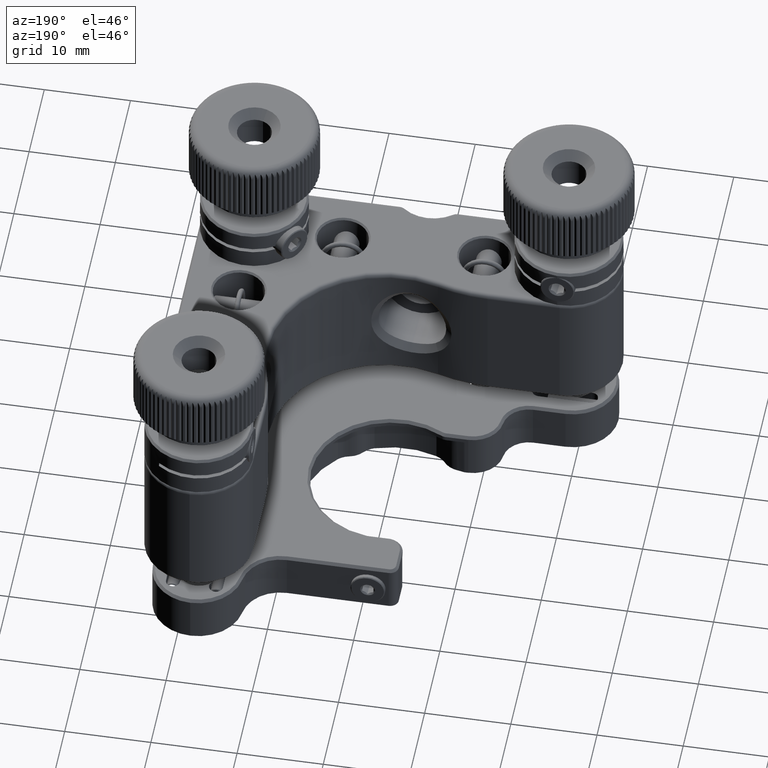
[diagram: clean part render]
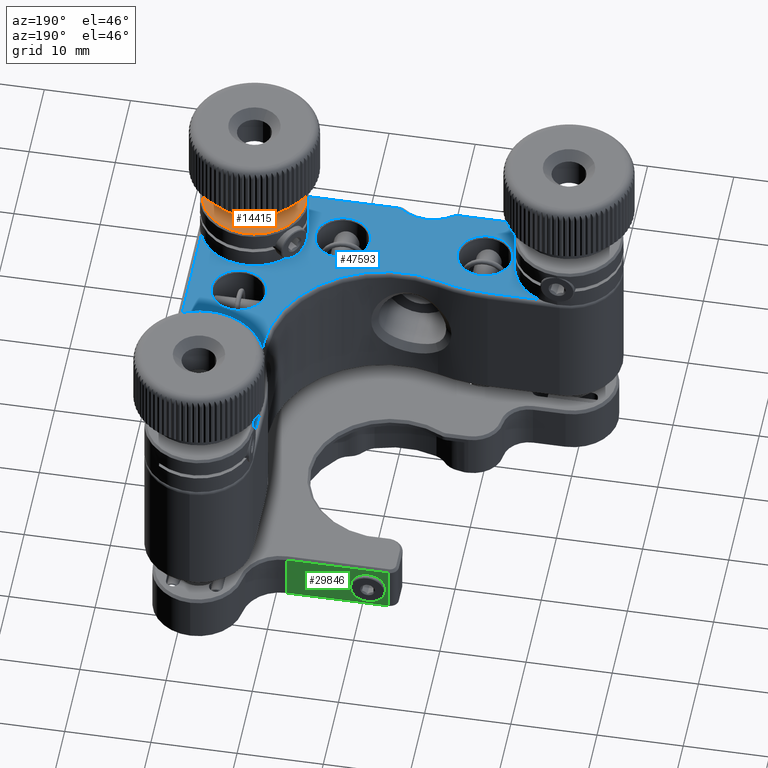
[diagram: same view with three faces highlighted in distinct colors, each labeled with its STEP entity id]
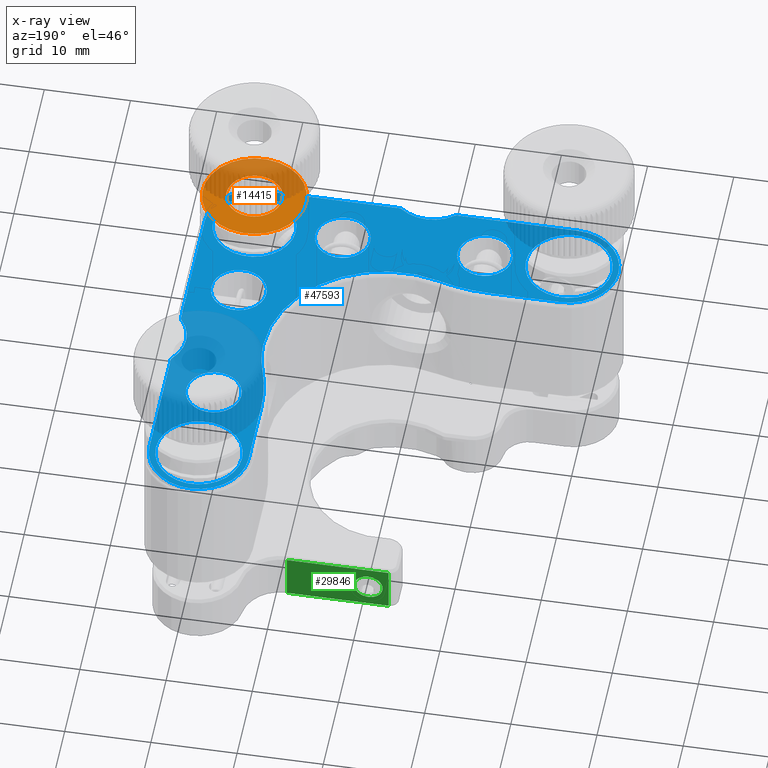
[diagram: x-ray of the same camera — body ghosted, the three highlighted faces saturated]
A machine part, auxiliary view with three faces highlighted in distinct colors.
The next image is the same camera in x-ray (body ghosted, the three faces saturated) — at least one of them is partly hidden behind the body in this view.
Their STEP definitions:

[orange] entity #14415 — the highlighted planar face has unit normal (-0, 0, -1).
#302 = AXIS2_PLACEMENT_3D ( 'NONE', #42571, #33354, #8518 ) ;
#671 = AXIS2_PLACEMENT_3D ( 'NONE', #47712, #34298, #20896 ) ;
#2427 = CARTESIAN_POINT ( 'NONE',  ( 18.25000000000000711, -18.24999999999999645, 12.50000000000000000 ) ) ;
#4098 = AXIS2_PLACEMENT_3D ( 'NONE', #26321, #47590, #38650 ) ;
#4198 = ORIENTED_EDGE ( 'NONE', *, *, #44161, .T. ) ;
#7264 = EDGE_CURVE ( 'NONE', #33093, #47151, #23450, .T. ) ;
#7959 = FACE_BOUND ( 'NONE', #16939, .T. ) ;
#8003 = CARTESIAN_POINT ( 'NONE',  ( 22.92461896794812759, -22.01137441695181352, 12.50000000000000000 ) ) ;
#8518 = DIRECTION ( 'NONE',  ( -0.7791031613246869325, 0.6268957361586364740, 0.000000000000000000 ) ) ;
#9682 = AXIS2_PLACEMENT_3D ( 'NONE', #25811, #12713, #42861 ) ;
#12367 = ORIENTED_EDGE ( 'NONE', *, *, #7264, .T. ) ;
#12428 = FACE_OUTER_BOUND ( 'NONE', #28843, .T. ) ;
#12713 = DIRECTION ( 'NONE',  ( -1.774750517403714598E-32, 3.949628969160791059E-32, -1.000000000000000000 ) ) ;
#14415 = ADVANCED_FACE ( 'NONE', ( #12428, #7959 ), #33637, .F. ) ;
#16939 = EDGE_LOOP ( 'NONE', ( #12367, #4198 ) ) ;
#18109 = CARTESIAN_POINT ( 'NONE',  ( 20.78208527430523489, -20.28741114251555899, 12.50000000000000000 ) ) ;
#18535 = ORIENTED_EDGE ( 'NONE', *, *, #42754, .T. ) ;
#20262 = CIRCLE ( 'NONE', #671, 3.249999999999993783 ) ;
#20896 = DIRECTION ( 'NONE',  ( -0.7791031613246869325, 0.6268957361586364740, 0.000000000000000000 ) ) ;
#23450 = CIRCLE ( 'NONE', #302, 3.249999999999993783 ) ;
#25811 = CARTESIAN_POINT ( 'NONE',  ( 23.11939475827930224, -22.16809835099147108, 12.50000000000000000 ) ) ;
#26321 = CARTESIAN_POINT ( 'NONE',  ( 18.25000000000000711, -18.24999999999999645, 12.50000000000000000 ) ) ;
#28093 = DIRECTION ( 'NONE',  ( -0.7791031613246870435, 0.6268957361586364740, 0.000000000000000000 ) ) ;
#28843 = EDGE_LOOP ( 'NONE', ( #18535, #30981 ) ) ;
#30915 = EDGE_CURVE ( 'NONE', #43958, #33453, #42083, .T. ) ;
#30981 = ORIENTED_EDGE ( 'NONE', *, *, #30915, .T. ) ;
#31255 = CARTESIAN_POINT ( 'NONE',  ( 13.57538103205188484, -14.48862558304817938, 12.50000000000000000 ) ) ;
#33093 = VERTEX_POINT ( 'NONE', #18109 ) ;
#33354 = DIRECTION ( 'NONE',  ( -1.774750517403716240E-32, 3.949628969160792153E-32, -1.000000000000000000 ) ) ;
#33453 = VERTEX_POINT ( 'NONE', #31255 ) ;
#33637 = PLANE ( 'NONE',  #9682 ) ;
#34026 = AXIS2_PLACEMENT_3D ( 'NONE', #2427, #35115, #28093 ) ;
#34298 = DIRECTION ( 'NONE',  ( -1.774750517403716240E-32, 3.949628969160792153E-32, -1.000000000000000000 ) ) ;
#35115 = DIRECTION ( 'NONE',  ( 1.774750517403716240E-32, -3.949628969160792153E-32, 1.000000000000000000 ) ) ;
#38650 = DIRECTION ( 'NONE',  ( -0.7791031613246870435, 0.6268957361586364740, 0.000000000000000000 ) ) ;
#42083 = CIRCLE ( 'NONE', #34026, 5.999999999999999112 ) ;
#42571 = CARTESIAN_POINT ( 'NONE',  ( 18.25000000000000711, -18.24999999999999645, 12.50000000000000000 ) ) ;
#42754 = EDGE_CURVE ( 'NONE', #33453, #43958, #53193, .T. ) ;
#42861 = DIRECTION ( 'NONE',  ( -0.7791031613246870435, 0.6268957361586364740, 3.858719298847387965E-32 ) ) ;
#43958 = VERTEX_POINT ( 'NONE', #8003 ) ;
#44161 = EDGE_CURVE ( 'NONE', #47151, #33093, #20262, .T. ) ;
#47151 = VERTEX_POINT ( 'NONE', #48096 ) ;
#47590 = DIRECTION ( 'NONE',  ( 1.774750517403716240E-32, -3.949628969160792153E-32, 1.000000000000000000 ) ) ;
#47712 = CARTESIAN_POINT ( 'NONE',  ( 18.25000000000000711, -18.24999999999999645, 12.50000000000000000 ) ) ;
#48096 = CARTESIAN_POINT ( 'NONE',  ( 15.71791472569477754, -16.21258885748443035, 12.50000000000000000 ) ) ;
#53193 = CIRCLE ( 'NONE', #4098, 5.999999999999999112 ) ;

[blue] entity #47593 — the highlighted planar face has unit normal (-0, 0, 1).
#135 = DIRECTION ( 'NONE',  ( 0.000000000000000000, -0.000000000000000000, -1.000000000000000000 ) ) ;
#561 = LINE ( 'NONE', #52240, #40468 ) ;
#638 = VERTEX_POINT ( 'NONE', #52473 ) ;
#869 = DIRECTION ( 'NONE',  ( 1.000000000000000000, 0.000000000000000000, 0.000000000000000000 ) ) ;
#1233 = VERTEX_POINT ( 'NONE', #31636 ) ;
#1269 = CIRCLE ( 'NONE', #22662, 5.750000000000001776 ) ;
#1830 = CARTESIAN_POINT ( 'NONE',  ( 2.160838266476662994, -23.88785046728971651, 7.500000000000000000 ) ) ;
#1965 = AXIS2_PLACEMENT_3D ( 'NONE', #22678, #10122, #39726 ) ;
#2215 = FACE_BOUND ( 'NONE', #8515, .T. ) ;
#2265 = VERTEX_POINT ( 'NONE', #17474 ) ;
#2332 = CARTESIAN_POINT ( 'NONE',  ( 18.25000000000000711, -18.24999999999999645, 7.500000000000000000 ) ) ;
#2372 = CARTESIAN_POINT ( 'NONE',  ( -18.24999999999999645, -12.50000000000000178, 7.500000000000000000 ) ) ;
#3173 = ORIENTED_EDGE ( 'NONE', *, *, #30691, .T. ) ;
#3495 = AXIS2_PLACEMENT_3D ( 'NONE', #28370, #49088, #41512 ) ;
#3537 = CARTESIAN_POINT ( 'NONE',  ( 18.25000000000001066, 8.500000000000000000, 7.500000000000000000 ) ) ;
#3730 = CARTESIAN_POINT ( 'NONE',  ( 21.45000000000000995, -8.000000000000000000, 7.500000000000000000 ) ) ;
#4076 = DIRECTION ( 'NONE',  ( -0.000000000000000000, 0.000000000000000000, 1.000000000000000000 ) ) ;
#4082 = EDGE_CURVE ( 'NONE', #26129, #1233, #46228, .T. ) ;
#4489 = EDGE_CURVE ( 'NONE', #49781, #6556, #6945, .T. ) ;
#4604 = EDGE_CURVE ( 'NONE', #49095, #15634, #9283, .T. ) ;
#4714 = CIRCLE ( 'NONE', #50215, 5.749999999999998224 ) ;
#5026 = VECTOR ( 'NONE', #48789, 1000.000000000000000 ) ;
#5339 = AXIS2_PLACEMENT_3D ( 'NONE', #44367, #45203, #41013 ) ;
#5568 = EDGE_LOOP ( 'NONE', ( #29308, #12417 ) ) ;
#5754 = DIRECTION ( 'NONE',  ( -0.000000000000000000, 0.000000000000000000, 1.000000000000000000 ) ) ;
#5776 = ORIENTED_EDGE ( 'NONE', *, *, #26663, .T. ) ;
#5913 = ORIENTED_EDGE ( 'NONE', *, *, #29263, .T. ) ;
#5980 = CIRCLE ( 'NONE', #17555, 5.750000000000000000 ) ;
#6197 = EDGE_CURVE ( 'NONE', #21159, #638, #1269, .T. ) ;
#6216 = DIRECTION ( 'NONE',  ( 1.000000000000000000, 0.000000000000000000, 0.000000000000000000 ) ) ;
#6556 = VERTEX_POINT ( 'NONE', #43048 ) ;
#6623 = CARTESIAN_POINT ( 'NONE',  ( -18.24999999999999645, -18.24999999999999645, 7.500000000000000000 ) ) ;
#6725 = CARTESIAN_POINT ( 'NONE',  ( 23.05000000000000426, -18.24999999999999645, 7.500000000000000000 ) ) ;
#6741 = CARTESIAN_POINT ( 'NONE',  ( -8.499999999999992895, -18.25000000000001776, 7.500000000000000000 ) ) ;
#6945 = CIRCLE ( 'NONE', #21211, 14.00000000000000000 ) ;
#7148 = ORIENTED_EDGE ( 'NONE', *, *, #31683, .T. ) ;
#7400 = AXIS2_PLACEMENT_3D ( 'NONE', #14029, #9016, #35247 ) ;
#7487 = CIRCLE ( 'NONE', #19974, 4.799999999999998934 ) ;
#7850 = ORIENTED_EDGE ( 'NONE', *, *, #36719, .T. ) ;
#7882 = EDGE_CURVE ( 'NONE', #30757, #25965, #52026, .T. ) ;
#7942 = VERTEX_POINT ( 'NONE', #52570 ) ;
#7960 = ORIENTED_EDGE ( 'NONE', *, *, #43223, .T. ) ;
#8242 = CIRCLE ( 'NONE', #13630, 4.999999999999997335 ) ;
#8515 = EDGE_LOOP ( 'NONE', ( #47464, #37489 ) ) ;
#9016 = DIRECTION ( 'NONE',  ( 0.000000000000000000, -0.000000000000000000, -1.000000000000000000 ) ) ;
#9131 = VERTEX_POINT ( 'NONE', #43553 ) ;
#9283 = LINE ( 'NONE', #43076, #29246 ) ;
#9506 = CIRCLE ( 'NONE', #52345, 4.999999999999997335 ) ;
#9998 = DIRECTION ( 'NONE',  ( 1.000000000000000000, 0.000000000000000000, 0.000000000000000000 ) ) ;
#10122 = DIRECTION ( 'NONE',  ( -0.000000000000000000, 0.000000000000000000, 1.000000000000000000 ) ) ;
#10330 = VERTEX_POINT ( 'NONE', #3730 ) ;
#10425 = DIRECTION ( 'NONE',  ( -0.000000000000000000, 0.000000000000000000, 1.000000000000000000 ) ) ;
#10592 = CARTESIAN_POINT ( 'NONE',  ( 18.25000000000000000, -23.99999999999999645, 7.500000000000000000 ) ) ;
#11469 = CARTESIAN_POINT ( 'NONE',  ( -8.499999999999992895, -18.25000000000001776, 7.500000000000000000 ) ) ;
#11473 = DIRECTION ( 'NONE',  ( 1.000000000000000000, 0.000000000000000000, 0.000000000000000000 ) ) ;
#12417 = ORIENTED_EDGE ( 'NONE', *, *, #23592, .T. ) ;
#12460 = CARTESIAN_POINT ( 'NONE',  ( 23.50000000000000000, -2.476388603226838292, 7.500000000000000000 ) ) ;
#12745 = CIRCLE ( 'NONE', #19867, 5.750000000000001776 ) ;
#13259 = AXIS2_PLACEMENT_3D ( 'NONE', #33964, #34240, #22201 ) ;
#13294 = DIRECTION ( 'NONE',  ( 1.000000000000000000, 0.000000000000000000, 0.000000000000000000 ) ) ;
#13630 = AXIS2_PLACEMENT_3D ( 'NONE', #36168, #32528, #28050 ) ;
#13929 = ORIENTED_EDGE ( 'NONE', *, *, #4489, .T. ) ;
#14029 = CARTESIAN_POINT ( 'NONE',  ( 18.25000000000001066, 8.500000000000000000, 7.500000000000000000 ) ) ;
#14168 = CARTESIAN_POINT ( 'NONE',  ( -4.276388603226822127, -23.99999999999999645, 7.500000000000000000 ) ) ;
#14387 = CARTESIAN_POINT ( 'NONE',  ( 23.88785046728972006, -2.160838266476666547, 7.500000000000000000 ) ) ;
#14587 = DIRECTION ( 'NONE',  ( -0.000000000000000000, 0.000000000000000000, 1.000000000000000000 ) ) ;
#14615 = ORIENTED_EDGE ( 'NONE', *, *, #43948, .T. ) ;
#14769 = FACE_BOUND ( 'NONE', #53486, .T. ) ;
#14786 = DIRECTION ( 'NONE',  ( 0.000000000000000000, 0.000000000000000000, 1.000000000000000000 ) ) ;
#14891 = CARTESIAN_POINT ( 'NONE',  ( 24.00000000000000000, 4.276388603226818574, 7.500000000000000000 ) ) ;
#15249 = CARTESIAN_POINT ( 'NONE',  ( 23.99999999999999645, 18.25000000000000355, 7.500000000000000000 ) ) ;
#15330 = FACE_BOUND ( 'NONE', #27174, .T. ) ;
#15373 = LINE ( 'NONE', #19005, #42768 ) ;
#15549 = DIRECTION ( 'NONE',  ( 1.000000000000000000, 0.000000000000000000, 0.000000000000000000 ) ) ;
#15634 = VERTEX_POINT ( 'NONE', #2372 ) ;
#15805 = DIRECTION ( 'NONE',  ( 0.000000000000000000, -0.000000000000000000, -1.000000000000000000 ) ) ;
#15927 = EDGE_CURVE ( 'NONE', #34416, #54352, #52593, .T. ) ;
#15956 = DIRECTION ( 'NONE',  ( 0.000000000000000000, -0.000000000000000000, -1.000000000000000000 ) ) ;
#16258 = VERTEX_POINT ( 'NONE', #45311 ) ;
#16584 = DIRECTION ( 'NONE',  ( 1.000000000000000000, 0.000000000000000000, 0.000000000000000000 ) ) ;
#16637 = CIRCLE ( 'NONE', #45207, 19.50000000000000355 ) ;
#16653 = ORIENTED_EDGE ( 'NONE', *, *, #15927, .T. ) ;
#16783 = CARTESIAN_POINT ( 'NONE',  ( 32.00000000000000000, 9.912113800799506436, 7.500000000000000000 ) ) ;
#17077 = AXIS2_PLACEMENT_3D ( 'NONE', #30086, #47149, #17512 ) ;
#17249 = ORIENTED_EDGE ( 'NONE', *, *, #46585, .T. ) ;
#17435 = EDGE_LOOP ( 'NONE', ( #55030, #14615 ) ) ;
#17474 = CARTESIAN_POINT ( 'NONE',  ( -5.299999999999991829, -18.25000000000001776, 7.500000000000000000 ) ) ;
#17512 = DIRECTION ( 'NONE',  ( 1.000000000000000000, 0.000000000000000000, 0.000000000000000000 ) ) ;
#17555 = AXIS2_PLACEMENT_3D ( 'NONE', #35758, #44691, #18997 ) ;
#17759 = CIRCLE ( 'NONE', #44533, 4.850000000000003197 ) ;
#18391 = AXIS2_PLACEMENT_3D ( 'NONE', #20757, #24933, #25224 ) ;
#18613 = ORIENTED_EDGE ( 'NONE', *, *, #4082, .T. ) ;
#18686 = CIRCLE ( 'NONE', #25813, 3.199999999999987743 ) ;
#18695 = LINE ( 'NONE', #10592, #39386 ) ;
#18862 = DIRECTION ( 'NONE',  ( 1.000000000000000000, 6.217248937900876626E-15, 0.000000000000000000 ) ) ;
#18886 = AXIS2_PLACEMENT_3D ( 'NONE', #6623, #31481, #9998 ) ;
#18997 = DIRECTION ( 'NONE',  ( 1.000000000000000000, 0.000000000000000000, 0.000000000000000000 ) ) ;
#19005 = CARTESIAN_POINT ( 'NONE',  ( 12.50000000000000533, 9.912113800799499330, 7.500000000000000000 ) ) ;
#19059 = VERTEX_POINT ( 'NONE', #36905 ) ;
#19254 = DIRECTION ( 'NONE',  ( -0.000000000000000000, 0.000000000000000000, 1.000000000000000000 ) ) ;
#19867 = AXIS2_PLACEMENT_3D ( 'NONE', #29191, #19254, #36288 ) ;
#19974 = AXIS2_PLACEMENT_3D ( 'NONE', #2332, #23270, #27725 ) ;
#20007 = CARTESIAN_POINT ( 'NONE',  ( 4.800000000000015810, -18.25000000000001066, 7.500000000000000000 ) ) ;
#20165 = CIRCLE ( 'NONE', #18391, 4.999999999999997335 ) ;
#20338 = CARTESIAN_POINT ( 'NONE',  ( 18.25000000000001066, -8.000000000000000000, 7.500000000000000000 ) ) ;
#20356 = EDGE_LOOP ( 'NONE', ( #39117, #26620 ) ) ;
#20757 = CARTESIAN_POINT ( 'NONE',  ( 18.25000000000000711, 18.25000000000000355, 7.500000000000000000 ) ) ;
#20786 = CIRCLE ( 'NONE', #41289, 3.200000000000001510 ) ;
#21159 = VERTEX_POINT ( 'NONE', #23758 ) ;
#21211 = AXIS2_PLACEMENT_3D ( 'NONE', #47094, #51569, #18862 ) ;
#21272 = CIRCLE ( 'NONE', #53392, 3.200000000000001510 ) ;
#22104 = CARTESIAN_POINT ( 'NONE',  ( -4.142375916752035536, -13.37313432835820848, 7.500000000000000000 ) ) ;
#22129 = AXIS2_PLACEMENT_3D ( 'NONE', #53150, #15956, #23524 ) ;
#22201 = DIRECTION ( 'NONE',  ( 1.000000000000000000, 0.000000000000000000, 0.000000000000000000 ) ) ;
#22261 = CARTESIAN_POINT ( 'NONE',  ( 24.00000000000000355, -18.24999999999999289, 7.500000000000000000 ) ) ;
#22590 = CIRCLE ( 'NONE', #43119, 4.999999999999997335 ) ;
#22612 = DIRECTION ( 'NONE',  ( -1.416100796715761110E-16, 1.000000000000000000, -0.000000000000000000 ) ) ;
#22662 = AXIS2_PLACEMENT_3D ( 'NONE', #40860, #10425, #40044 ) ;
#22678 = CARTESIAN_POINT ( 'NONE',  ( 2.476388603226833407, -23.49999999999999645, 7.500000000000000000 ) ) ;
#22808 = LINE ( 'NONE', #14168, #5026 ) ;
#23270 = DIRECTION ( 'NONE',  ( 0.000000000000000000, 0.000000000000000000, 1.000000000000000000 ) ) ;
#23409 = EDGE_CURVE ( 'NONE', #9131, #16258, #22808, .T. ) ;
#23524 = DIRECTION ( 'NONE',  ( 1.000000000000000000, 0.000000000000000000, 0.000000000000000000 ) ) ;
#23592 = EDGE_CURVE ( 'NONE', #26900, #53730, #9506, .T. ) ;
#23627 = ORIENTED_EDGE ( 'NONE', *, *, #23409, .T. ) ;
#23738 = DIRECTION ( 'NONE',  ( 1.000000000000000000, 0.000000000000000000, 0.000000000000000000 ) ) ;
#23758 = CARTESIAN_POINT ( 'NONE',  ( 18.25000000000000711, 24.00000000000000355, 7.500000000000000000 ) ) ;
#23981 = CIRCLE ( 'NONE', #13259, 14.00000000000000000 ) ;
#24139 = CIRCLE ( 'NONE', #35749, 0.5000000000000000000 ) ;
#24312 = CARTESIAN_POINT ( 'NONE',  ( -4.276388603226821239, -23.49999999999999645, 7.500000000000000000 ) ) ;
#24535 = CARTESIAN_POINT ( 'NONE',  ( 2.476388603226832519, -23.99999999999999645, 7.500000000000000000 ) ) ;
#24687 = CARTESIAN_POINT ( 'NONE',  ( 8.000000000000003553, -18.25000000000001066, 7.500000000000000000 ) ) ;
#24926 = CARTESIAN_POINT ( 'NONE',  ( 13.37313432835820848, 4.142375916752031983, 7.500000000000000000 ) ) ;
#24933 = DIRECTION ( 'NONE',  ( 0.000000000000000000, -0.000000000000000000, -1.000000000000000000 ) ) ;
#25224 = DIRECTION ( 'NONE',  ( 1.000000000000000000, 0.000000000000000000, 0.000000000000000000 ) ) ;
#25271 = EDGE_CURVE ( 'NONE', #53730, #26900, #20165, .T. ) ;
#25304 = DIRECTION ( 'NONE',  ( 1.000000000000000000, 0.000000000000000000, 0.000000000000000000 ) ) ;
#25357 = CARTESIAN_POINT ( 'NONE',  ( -9.912113800799515317, -12.50000000000000000, 7.500000000000000000 ) ) ;
#25467 = ORIENTED_EDGE ( 'NONE', *, *, #26258, .T. ) ;
#25492 = ORIENTED_EDGE ( 'NONE', *, *, #53668, .T. ) ;
#25672 = EDGE_CURVE ( 'NONE', #49772, #42863, #17759, .T. ) ;
#25813 = AXIS2_PLACEMENT_3D ( 'NONE', #24687, #135, #16584 ) ;
#25965 = VERTEX_POINT ( 'NONE', #51914 ) ;
#26018 = EDGE_CURVE ( 'NONE', #48387, #49095, #40081, .T. ) ;
#26129 = VERTEX_POINT ( 'NONE', #20007 ) ;
#26258 = EDGE_CURVE ( 'NONE', #25965, #49772, #33870, .T. ) ;
#26620 = ORIENTED_EDGE ( 'NONE', *, *, #53916, .T. ) ;
#26663 = EDGE_CURVE ( 'NONE', #1233, #26129, #18686, .T. ) ;
#26900 = VERTEX_POINT ( 'NONE', #38920 ) ;
#27174 = EDGE_LOOP ( 'NONE', ( #48810, #5913 ) ) ;
#27202 = VERTEX_POINT ( 'NONE', #47801 ) ;
#27355 = ORIENTED_EDGE ( 'NONE', *, *, #45462, .T. ) ;
#27410 = ORIENTED_EDGE ( 'NONE', *, *, #30825, .T. ) ;
#27413 = DIRECTION ( 'NONE',  ( 0.000000000000000000, -0.000000000000000000, -1.000000000000000000 ) ) ;
#27527 = EDGE_LOOP ( 'NONE', ( #47952, #39685, #38692, #27410, #23627, #28729, #16653, #29194, #30043, #7850, #42567, #25467, #30904, #3173, #25492, #7148, #29985, #17249, #7960, #13929, #52399 ) ) ;
#27586 = AXIS2_PLACEMENT_3D ( 'NONE', #39496, #47026, #52335 ) ;
#27725 = DIRECTION ( 'NONE',  ( 1.000000000000000000, 0.000000000000000000, 0.000000000000000000 ) ) ;
#27798 = CIRCLE ( 'NONE', #17077, 0.5000000000000004441 ) ;
#27806 = CIRCLE ( 'NONE', #47445, 4.799999999999998934 ) ;
#27916 = DIRECTION ( 'NONE',  ( 0.000000000000000000, -0.000000000000000000, -1.000000000000000000 ) ) ;
#28009 = VERTEX_POINT ( 'NONE', #6725 ) ;
#28050 = DIRECTION ( 'NONE',  ( 1.000000000000000000, 0.000000000000000000, 0.000000000000000000 ) ) ;
#28370 = CARTESIAN_POINT ( 'NONE',  ( -9.912113800799513541, -32.00000000000000000, 7.500000000000000000 ) ) ;
#28479 = DIRECTION ( 'NONE',  ( 1.000000000000000000, 0.000000000000000000, 0.000000000000000000 ) ) ;
#28521 = AXIS2_PLACEMENT_3D ( 'NONE', #12460, #4076, #25304 ) ;
#28701 = DIRECTION ( 'NONE',  ( 1.000000000000000000, 0.000000000000000000, 0.000000000000000000 ) ) ;
#28729 = ORIENTED_EDGE ( 'NONE', *, *, #48489, .T. ) ;
#29177 = EDGE_LOOP ( 'NONE', ( #5776, #18613 ) ) ;
#29191 = CARTESIAN_POINT ( 'NONE',  ( 18.24999999999999289, 18.25000000000000355, 7.500000000000000000 ) ) ;
#29193 = EDGE_CURVE ( 'NONE', #54352, #45419, #35840, .T. ) ;
#29194 = ORIENTED_EDGE ( 'NONE', *, *, #29193, .T. ) ;
#29246 = VECTOR ( 'NONE', #47825, 1000.000000000000000 ) ;
#29263 = EDGE_CURVE ( 'NONE', #19059, #2265, #54587, .T. ) ;
#29308 = ORIENTED_EDGE ( 'NONE', *, *, #25271, .T. ) ;
#29356 = VERTEX_POINT ( 'NONE', #45820 ) ;
#29985 = ORIENTED_EDGE ( 'NONE', *, *, #6197, .T. ) ;
#30034 = DIRECTION ( 'NONE',  ( 1.000000000000000000, 0.000000000000000000, 0.000000000000000000 ) ) ;
#30043 = ORIENTED_EDGE ( 'NONE', *, *, #30471, .T. ) ;
#30086 = CARTESIAN_POINT ( 'NONE',  ( 23.50000000000000000, 4.276388603226819463, 7.500000000000000000 ) ) ;
#30152 = CARTESIAN_POINT ( 'NONE',  ( 23.25000000000000355, 18.25000000000000355, 7.500000000000000000 ) ) ;
#30471 = EDGE_CURVE ( 'NONE', #45419, #27202, #18695, .T. ) ;
#30691 = EDGE_CURVE ( 'NONE', #42863, #52381, #27798, .T. ) ;
#30757 = VERTEX_POINT ( 'NONE', #22261 ) ;
#30761 = CARTESIAN_POINT ( 'NONE',  ( 24.00000000000000000, -2.476388603226839624, 7.500000000000000000 ) ) ;
#30825 = EDGE_CURVE ( 'NONE', #31641, #9131, #52787, .T. ) ;
#30904 = ORIENTED_EDGE ( 'NONE', *, *, #25672, .T. ) ;
#31254 = FACE_OUTER_BOUND ( 'NONE', #27527, .T. ) ;
#31269 = DIRECTION ( 'NONE',  ( 1.000000000000000000, -0.000000000000000000, 0.000000000000000000 ) ) ;
#31481 = DIRECTION ( 'NONE',  ( -0.000000000000000000, 0.000000000000000000, 1.000000000000000000 ) ) ;
#31636 = CARTESIAN_POINT ( 'NONE',  ( 11.19999999999999041, -18.25000000000001066, 7.500000000000000000 ) ) ;
#31641 = VERTEX_POINT ( 'NONE', #52534 ) ;
#31683 = EDGE_CURVE ( 'NONE', #39639, #21159, #12745, .T. ) ;
#32145 = DIRECTION ( 'NONE',  ( 0.000000000000000000, -0.000000000000000000, -1.000000000000000000 ) ) ;
#32160 = CARTESIAN_POINT ( 'NONE',  ( 27.65000000000000568, 0.8999999999999910294, 7.500000000000000000 ) ) ;
#32170 = CARTESIAN_POINT ( 'NONE',  ( 13.45000000000000639, -18.24999999999999645, 7.500000000000000000 ) ) ;
#32528 = DIRECTION ( 'NONE',  ( 0.000000000000000000, -0.000000000000000000, -1.000000000000000000 ) ) ;
#33330 = VERTEX_POINT ( 'NONE', #43831 ) ;
#33870 = CIRCLE ( 'NONE', #28521, 0.5000000000000004441 ) ;
#33964 = CARTESIAN_POINT ( 'NONE',  ( 0.000000000000000000, 0.000000000000000000, 7.500000000000000000 ) ) ;
#34240 = DIRECTION ( 'NONE',  ( 0.000000000000000000, -0.000000000000000000, -1.000000000000000000 ) ) ;
#34416 = VERTEX_POINT ( 'NONE', #50582 ) ;
#34591 = ORIENTED_EDGE ( 'NONE', *, *, #46662, .T. ) ;
#34725 = CARTESIAN_POINT ( 'NONE',  ( -13.24999999999999822, -18.24999999999999645, 7.500000000000000000 ) ) ;
#35247 = DIRECTION ( 'NONE',  ( 1.000000000000000000, 0.000000000000000000, 0.000000000000000000 ) ) ;
#35274 = CARTESIAN_POINT ( 'NONE',  ( 23.88785046728972006, 3.960838266476649494, 7.500000000000000000 ) ) ;
#35717 = FACE_BOUND ( 'NONE', #5568, .T. ) ;
#35749 = AXIS2_PLACEMENT_3D ( 'NONE', #24312, #14587, #11473 ) ;
#35758 = CARTESIAN_POINT ( 'NONE',  ( -18.24999999999999645, -18.25000000000000355, 7.500000000000000000 ) ) ;
#35802 = DIRECTION ( 'NONE',  ( 1.000000000000000000, 0.000000000000000000, 0.000000000000000000 ) ) ;
#35840 = CIRCLE ( 'NONE', #1965, 0.5000000000000000000 ) ;
#36013 = CARTESIAN_POINT ( 'NONE',  ( 18.25000000000000711, -18.24999999999999645, 7.500000000000000000 ) ) ;
#36168 = CARTESIAN_POINT ( 'NONE',  ( -18.24999999999999645, -18.24999999999999645, 7.500000000000000000 ) ) ;
#36288 = DIRECTION ( 'NONE',  ( 1.000000000000000000, 0.000000000000000000, 0.000000000000000000 ) ) ;
#36500 = CIRCLE ( 'NONE', #40976, 3.200000000000001510 ) ;
#36555 = DIRECTION ( 'NONE',  ( 1.000000000000000000, 0.000000000000000000, 0.000000000000000000 ) ) ;
#36719 = EDGE_CURVE ( 'NONE', #27202, #30757, #4714, .T. ) ;
#36905 = CARTESIAN_POINT ( 'NONE',  ( -11.69999999999999574, -18.25000000000001776, 7.500000000000000000 ) ) ;
#37031 = CARTESIAN_POINT ( 'NONE',  ( 18.25000000000000711, 18.25000000000000355, 7.500000000000000000 ) ) ;
#37145 = DIRECTION ( 'NONE',  ( 0.000000000000000000, -0.000000000000000000, -1.000000000000000000 ) ) ;
#37388 = DIRECTION ( 'NONE',  ( 0.000000000000000000, -0.000000000000000000, -1.000000000000000000 ) ) ;
#37489 = ORIENTED_EDGE ( 'NONE', *, *, #50088, .F. ) ;
#37536 = CARTESIAN_POINT ( 'NONE',  ( 12.50000000000000533, 9.912113800799499330, 7.500000000000000000 ) ) ;
#37632 = AXIS2_PLACEMENT_3D ( 'NONE', #11469, #37145, #28479 ) ;
#38608 = EDGE_CURVE ( 'NONE', #28009, #54694, #7487, .T. ) ;
#38692 = ORIENTED_EDGE ( 'NONE', *, *, #43426, .T. ) ;
#38920 = CARTESIAN_POINT ( 'NONE',  ( 13.25000000000000888, 18.25000000000000355, 7.500000000000000000 ) ) ;
#38951 = CARTESIAN_POINT ( 'NONE',  ( 15.05000000000000782, -8.000000000000000000, 7.500000000000000000 ) ) ;
#39117 = ORIENTED_EDGE ( 'NONE', *, *, #50639, .T. ) ;
#39386 = VECTOR ( 'NONE', #31269, 1000.000000000000000 ) ;
#39445 = DIRECTION ( 'NONE',  ( -1.416100796715761110E-16, 1.000000000000000000, -0.000000000000000000 ) ) ;
#39496 = CARTESIAN_POINT ( 'NONE',  ( -0.8999999999999939160, -27.65000000000000213, 7.500000000000000000 ) ) ;
#39639 = VERTEX_POINT ( 'NONE', #15249 ) ;
#39685 = ORIENTED_EDGE ( 'NONE', *, *, #4604, .T. ) ;
#39726 = DIRECTION ( 'NONE',  ( 1.000000000000000000, 0.000000000000000000, 0.000000000000000000 ) ) ;
#39920 = FACE_BOUND ( 'NONE', #17435, .T. ) ;
#40044 = DIRECTION ( 'NONE',  ( 1.000000000000000000, 0.000000000000000000, 0.000000000000000000 ) ) ;
#40081 = CIRCLE ( 'NONE', #3495, 19.50000000000000000 ) ;
#40202 = PLANE ( 'NONE',  #5339 ) ;
#40468 = VECTOR ( 'NONE', #22612, 1000.000000000000000 ) ;
#40736 = FACE_BOUND ( 'NONE', #29177, .T. ) ;
#40860 = CARTESIAN_POINT ( 'NONE',  ( 18.25000000000000711, 18.25000000000000355, 7.500000000000000000 ) ) ;
#40976 = AXIS2_PLACEMENT_3D ( 'NONE', #48635, #27916, #23738 ) ;
#41013 = DIRECTION ( 'NONE',  ( 1.000000000000000000, 0.000000000000000000, 0.000000000000000000 ) ) ;
#41289 = AXIS2_PLACEMENT_3D ( 'NONE', #6741, #32145, #35802 ) ;
#41512 = DIRECTION ( 'NONE',  ( 1.000000000000000000, 0.000000000000000000, 0.000000000000000000 ) ) ;
#42567 = ORIENTED_EDGE ( 'NONE', *, *, #7882, .T. ) ;
#42678 = VERTEX_POINT ( 'NONE', #37536 ) ;
#42768 = VECTOR ( 'NONE', #52825, 1000.000000000000000 ) ;
#42863 = VERTEX_POINT ( 'NONE', #35274 ) ;
#43048 = CARTESIAN_POINT ( 'NONE',  ( 14.00000000000000000, 0.000000000000000000, 7.500000000000000000 ) ) ;
#43076 = CARTESIAN_POINT ( 'NONE',  ( -18.24999999999999645, -12.50000000000000000, 7.500000000000000000 ) ) ;
#43119 = AXIS2_PLACEMENT_3D ( 'NONE', #54145, #49964, #28701 ) ;
#43223 = EDGE_CURVE ( 'NONE', #42678, #49781, #16637, .T. ) ;
#43426 = EDGE_CURVE ( 'NONE', #15634, #31641, #5980, .T. ) ;
#43553 = CARTESIAN_POINT ( 'NONE',  ( -18.24999999999999645, -23.99999999999999645, 7.500000000000000000 ) ) ;
#43831 = CARTESIAN_POINT ( 'NONE',  ( 15.05000000000002203, 8.500000000000000000, 7.500000000000000000 ) ) ;
#43948 = EDGE_CURVE ( 'NONE', #33330, #7942, #51529, .T. ) ;
#44367 = CARTESIAN_POINT ( 'NONE',  ( 0.000000000000000000, 0.000000000000000000, 7.500000000000000000 ) ) ;
#44533 = AXIS2_PLACEMENT_3D ( 'NONE', #32160, #27413, #6216 ) ;
#44691 = DIRECTION ( 'NONE',  ( -0.000000000000000000, 0.000000000000000000, 1.000000000000000000 ) ) ;
#44886 = CIRCLE ( 'NONE', #7400, 3.199999999999987743 ) ;
#45203 = DIRECTION ( 'NONE',  ( -0.000000000000000000, 0.000000000000000000, 1.000000000000000000 ) ) ;
#45207 = AXIS2_PLACEMENT_3D ( 'NONE', #16783, #55072, #869 ) ;
#45311 = CARTESIAN_POINT ( 'NONE',  ( -4.276388603226822127, -23.99999999999999645, 7.500000000000000000 ) ) ;
#45419 = VERTEX_POINT ( 'NONE', #24535 ) ;
#45462 = EDGE_CURVE ( 'NONE', #10330, #49581, #21272, .T. ) ;
#45820 = CARTESIAN_POINT ( 'NONE',  ( -23.24999999999999289, -18.24999999999999645, 7.500000000000000000 ) ) ;
#45985 = EDGE_CURVE ( 'NONE', #6556, #48387, #23981, .T. ) ;
#46228 = CIRCLE ( 'NONE', #22129, 3.199999999999987743 ) ;
#46585 = EDGE_CURVE ( 'NONE', #638, #42678, #15373, .T. ) ;
#46662 = EDGE_CURVE ( 'NONE', #49581, #10330, #36500, .T. ) ;
#46832 = DIRECTION ( 'NONE',  ( 0.000000000000000000, -0.000000000000000000, -1.000000000000000000 ) ) ;
#47026 = DIRECTION ( 'NONE',  ( 0.000000000000000000, -0.000000000000000000, -1.000000000000000000 ) ) ;
#47094 = CARTESIAN_POINT ( 'NONE',  ( 0.000000000000000000, 0.000000000000000000, 7.500000000000000000 ) ) ;
#47149 = DIRECTION ( 'NONE',  ( -0.000000000000000000, 0.000000000000000000, 1.000000000000000000 ) ) ;
#47445 = AXIS2_PLACEMENT_3D ( 'NONE', #36013, #14786, #36555 ) ;
#47464 = ORIENTED_EDGE ( 'NONE', *, *, #38608, .F. ) ;
#47593 = ADVANCED_FACE ( 'NONE', ( #53314, #15330, #40736, #14769, #39920, #35717, #31254, #2215 ), #40202, .T. ) ;
#47801 = CARTESIAN_POINT ( 'NONE',  ( 18.25000000000000000, -23.99999999999999645, 7.500000000000000000 ) ) ;
#47825 = DIRECTION ( 'NONE',  ( -1.000000000000000000, -9.471423015207876716E-17, -0.000000000000000000 ) ) ;
#47952 = ORIENTED_EDGE ( 'NONE', *, *, #26018, .T. ) ;
#48387 = VERTEX_POINT ( 'NONE', #22104 ) ;
#48489 = EDGE_CURVE ( 'NONE', #16258, #34416, #24139, .T. ) ;
#48635 = CARTESIAN_POINT ( 'NONE',  ( 18.25000000000001066, -8.000000000000000000, 7.500000000000000000 ) ) ;
#48775 = VECTOR ( 'NONE', #39445, 1000.000000000000000 ) ;
#48789 = DIRECTION ( 'NONE',  ( 1.000000000000000000, -0.000000000000000000, 0.000000000000000000 ) ) ;
#48810 = ORIENTED_EDGE ( 'NONE', *, *, #53368, .T. ) ;
#49088 = DIRECTION ( 'NONE',  ( -0.000000000000000000, 0.000000000000000000, 1.000000000000000000 ) ) ;
#49095 = VERTEX_POINT ( 'NONE', #25357 ) ;
#49581 = VERTEX_POINT ( 'NONE', #38951 ) ;
#49772 = VERTEX_POINT ( 'NONE', #14387 ) ;
#49781 = VERTEX_POINT ( 'NONE', #24926 ) ;
#49964 = DIRECTION ( 'NONE',  ( 0.000000000000000000, -0.000000000000000000, -1.000000000000000000 ) ) ;
#50088 = EDGE_CURVE ( 'NONE', #54694, #28009, #27806, .T. ) ;
#50215 = AXIS2_PLACEMENT_3D ( 'NONE', #51576, #5754, #13294 ) ;
#50582 = CARTESIAN_POINT ( 'NONE',  ( -3.960838266476649938, -23.88785046728971651, 7.500000000000000000 ) ) ;
#50639 = EDGE_CURVE ( 'NONE', #52088, #29356, #8242, .T. ) ;
#51529 = CIRCLE ( 'NONE', #55105, 3.199999999999987743 ) ;
#51569 = DIRECTION ( 'NONE',  ( 0.000000000000000000, -0.000000000000000000, -1.000000000000000000 ) ) ;
#51576 = CARTESIAN_POINT ( 'NONE',  ( 18.25000000000000355, -18.24999999999999289, 7.500000000000000000 ) ) ;
#51914 = CARTESIAN_POINT ( 'NONE',  ( 24.00000000000000000, -2.476388603226839180, 7.500000000000000000 ) ) ;
#52026 = LINE ( 'NONE', #30761, #48775 ) ;
#52088 = VERTEX_POINT ( 'NONE', #34725 ) ;
#52240 = CARTESIAN_POINT ( 'NONE',  ( 23.99999999999999645, 18.25000000000000355, 7.500000000000000000 ) ) ;
#52335 = DIRECTION ( 'NONE',  ( 1.000000000000000000, -1.430699774001489446E-15, 0.000000000000000000 ) ) ;
#52345 = AXIS2_PLACEMENT_3D ( 'NONE', #37031, #15805, #15549 ) ;
#52381 = VERTEX_POINT ( 'NONE', #14891 ) ;
#52399 = ORIENTED_EDGE ( 'NONE', *, *, #45985, .T. ) ;
#52473 = CARTESIAN_POINT ( 'NONE',  ( 12.50000000000000533, 18.25000000000000000, 7.500000000000000000 ) ) ;
#52534 = CARTESIAN_POINT ( 'NONE',  ( -23.99999999999999645, -18.24999999999999289, 7.500000000000000000 ) ) ;
#52570 = CARTESIAN_POINT ( 'NONE',  ( 21.44999999999999574, 8.500000000000000000, 7.500000000000000000 ) ) ;
#52593 = CIRCLE ( 'NONE', #27586, 4.850000000000003197 ) ;
#52787 = CIRCLE ( 'NONE', #18886, 5.750000000000000000 ) ;
#52825 = DIRECTION ( 'NONE',  ( 3.788569206083147235E-16, -1.000000000000000000, 0.000000000000000000 ) ) ;
#53144 = EDGE_CURVE ( 'NONE', #7942, #33330, #44886, .T. ) ;
#53150 = CARTESIAN_POINT ( 'NONE',  ( 8.000000000000003553, -18.25000000000001066, 7.500000000000000000 ) ) ;
#53314 = FACE_BOUND ( 'NONE', #20356, .T. ) ;
#53368 = EDGE_CURVE ( 'NONE', #2265, #19059, #20786, .T. ) ;
#53392 = AXIS2_PLACEMENT_3D ( 'NONE', #20338, #37388, #54449 ) ;
#53486 = EDGE_LOOP ( 'NONE', ( #27355, #34591 ) ) ;
#53668 = EDGE_CURVE ( 'NONE', #52381, #39639, #561, .T. ) ;
#53730 = VERTEX_POINT ( 'NONE', #30152 ) ;
#53916 = EDGE_CURVE ( 'NONE', #29356, #52088, #22590, .T. ) ;
#54145 = CARTESIAN_POINT ( 'NONE',  ( -18.24999999999999645, -18.24999999999999645, 7.500000000000000000 ) ) ;
#54352 = VERTEX_POINT ( 'NONE', #1830 ) ;
#54449 = DIRECTION ( 'NONE',  ( 1.000000000000000000, 0.000000000000000000, 0.000000000000000000 ) ) ;
#54587 = CIRCLE ( 'NONE', #37632, 3.200000000000001510 ) ;
#54694 = VERTEX_POINT ( 'NONE', #32170 ) ;
#55030 = ORIENTED_EDGE ( 'NONE', *, *, #53144, .T. ) ;
#55072 = DIRECTION ( 'NONE',  ( -0.000000000000000000, 0.000000000000000000, 1.000000000000000000 ) ) ;
#55105 = AXIS2_PLACEMENT_3D ( 'NONE', #3537, #46832, #30034 ) ;

[green] entity #29846 — the highlighted planar face has unit normal (-0, -1, 0).
#944 = VECTOR ( 'NONE', #11551, 1000.000000000000000 ) ;
#1218 = EDGE_LOOP ( 'NONE', ( #29528, #2403, #24275, #25268 ) ) ;
#2403 = ORIENTED_EDGE ( 'NONE', *, *, #13101, .T. ) ;
#2757 = CARTESIAN_POINT ( 'NONE',  ( -7.249999999999973355, 15.39999999999999680, -11.00000000000000355 ) ) ;
#5583 = EDGE_CURVE ( 'NONE', #22538, #35534, #49108, .T. ) ;
#6686 = ORIENTED_EDGE ( 'NONE', *, *, #30134, .F. ) ;
#7083 = DIRECTION ( 'NONE',  ( -1.000000000000000000, 0.000000000000000000, 0.000000000000000000 ) ) ;
#7232 = AXIS2_PLACEMENT_3D ( 'NONE', #49004, #45903, #7083 ) ;
#8932 = CARTESIAN_POINT ( 'NONE',  ( 0.7500000000000301981, 15.39999999999999503, -14.00000000000000178 ) ) ;
#10451 = CARTESIAN_POINT ( 'NONE',  ( -3.249999999999970690, 15.39999999999999680, -16.69999999999999218 ) ) ;
#11408 = DIRECTION ( 'NONE',  ( 1.000000000000000000, -2.545974405236084502E-16, 2.857193325768579865E-17 ) ) ;
#11551 = DIRECTION ( 'NONE',  ( -1.000000000000000000, 2.545974405236084502E-16, -2.857193325768579865E-17 ) ) ;
#13101 = EDGE_CURVE ( 'NONE', #35534, #28666, #46010, .T. ) ;
#15828 = VECTOR ( 'NONE', #37634, 1000.000000000000000 ) ;
#16010 = CARTESIAN_POINT ( 'NONE',  ( -3.249999999999970690, 15.39999999999999680, -16.69999999999999218 ) ) ;
#17391 = CARTESIAN_POINT ( 'NONE',  ( -3.249999999999970690, 15.39999999999999680, -11.30000000000000426 ) ) ;
#17652 = DIRECTION ( 'NONE',  ( -1.000000000000000000, 0.000000000000000000, 0.000000000000000000 ) ) ;
#19425 = VECTOR ( 'NONE', #20021, 1000.000000000000000 ) ;
#19784 = DIRECTION ( 'NONE',  ( -2.545974405236084502E-16, -1.000000000000000000, 1.471345059095167592E-18 ) ) ;
#20021 = DIRECTION ( 'NONE',  ( -2.857193325768580482E-17, 1.471345059095184155E-18, 1.000000000000000000 ) ) ;
#20584 = CARTESIAN_POINT ( 'NONE',  ( -7.249999999999973355, 15.39999999999999680, -11.30000000000000426 ) ) ;
#20736 = CARTESIAN_POINT ( 'NONE',  ( 8.568058046032311026, 15.39999999999999325, -11.00000000000000355 ) ) ;
#21022 = VERTEX_POINT ( 'NONE', #39451 ) ;
#21087 = VECTOR ( 'NONE', #51203, 1000.000000000000000 ) ;
#22538 = VERTEX_POINT ( 'NONE', #10451 ) ;
#23722 = EDGE_CURVE ( 'NONE', #28666, #41949, #46728, .T. ) ;
#24217 = CARTESIAN_POINT ( 'NONE',  ( -3.249999999999970690, 15.39999999999999680, -11.00000000000000355 ) ) ;
#24243 = PLANE ( 'NONE',  #50020 ) ;
#24275 = ORIENTED_EDGE ( 'NONE', *, *, #23722, .T. ) ;
#25226 = CARTESIAN_POINT ( 'NONE',  ( -0.8999999999999682698, 15.39999999999999503, -14.00000000000000178 ) ) ;
#25268 = ORIENTED_EDGE ( 'NONE', *, *, #33997, .T. ) ;
#25497 = DIRECTION ( 'NONE',  ( 3.925431408496090042E-16, 1.000000000000000000, -1.471345059095163933E-18 ) ) ;
#26420 = CARTESIAN_POINT ( 'NONE',  ( 8.568058046032311026, 15.39999999999999325, -11.30000000000000426 ) ) ;
#28138 = FACE_BOUND ( 'NONE', #29137, .T. ) ;
#28666 = VERTEX_POINT ( 'NONE', #26420 ) ;
#29137 = EDGE_LOOP ( 'NONE', ( #6686, #31213 ) ) ;
#29528 = ORIENTED_EDGE ( 'NONE', *, *, #5583, .T. ) ;
#29846 = ADVANCED_FACE ( 'NONE', ( #28138, #45205 ), #24243, .F. ) ;
#30134 = EDGE_CURVE ( 'NONE', #21022, #47578, #47400, .T. ) ;
#31213 = ORIENTED_EDGE ( 'NONE', *, *, #41515, .F. ) ;
#33039 = LINE ( 'NONE', #16010, #944 ) ;
#33997 = EDGE_CURVE ( 'NONE', #41949, #22538, #33039, .T. ) ;
#35534 = VERTEX_POINT ( 'NONE', #17391 ) ;
#37634 = DIRECTION ( 'NONE',  ( 1.000000000000000000, -2.545974405236084502E-16, 2.857193325768579865E-17 ) ) ;
#37911 = AXIS2_PLACEMENT_3D ( 'NONE', #25226, #25497, #17652 ) ;
#38008 = CARTESIAN_POINT ( 'NONE',  ( 8.568058046032311026, 15.39999999999999325, -16.69999999999999218 ) ) ;
#38831 = CIRCLE ( 'NONE', #37911, 1.649999999999998135 ) ;
#39451 = CARTESIAN_POINT ( 'NONE',  ( -2.549999999999966516, 15.39999999999999503, -14.00000000000000178 ) ) ;
#41515 = EDGE_CURVE ( 'NONE', #47578, #21022, #38831, .T. ) ;
#41949 = VERTEX_POINT ( 'NONE', #38008 ) ;
#45205 = FACE_OUTER_BOUND ( 'NONE', #1218, .T. ) ;
#45903 = DIRECTION ( 'NONE',  ( 3.925431408496090042E-16, 1.000000000000000000, -1.471345059095163933E-18 ) ) ;
#46010 = LINE ( 'NONE', #20584, #15828 ) ;
#46728 = LINE ( 'NONE', #20736, #21087 ) ;
#47400 = CIRCLE ( 'NONE', #7232, 1.649999999999998135 ) ;
#47578 = VERTEX_POINT ( 'NONE', #8932 ) ;
#49004 = CARTESIAN_POINT ( 'NONE',  ( -0.8999999999999682698, 15.39999999999999503, -14.00000000000000178 ) ) ;
#49108 = LINE ( 'NONE', #24217, #19425 ) ;
#50020 = AXIS2_PLACEMENT_3D ( 'NONE', #2757, #19784, #11408 ) ;
#51203 = DIRECTION ( 'NONE',  ( 2.857193325768580482E-17, -1.471345059095184155E-18, -1.000000000000000000 ) ) ;